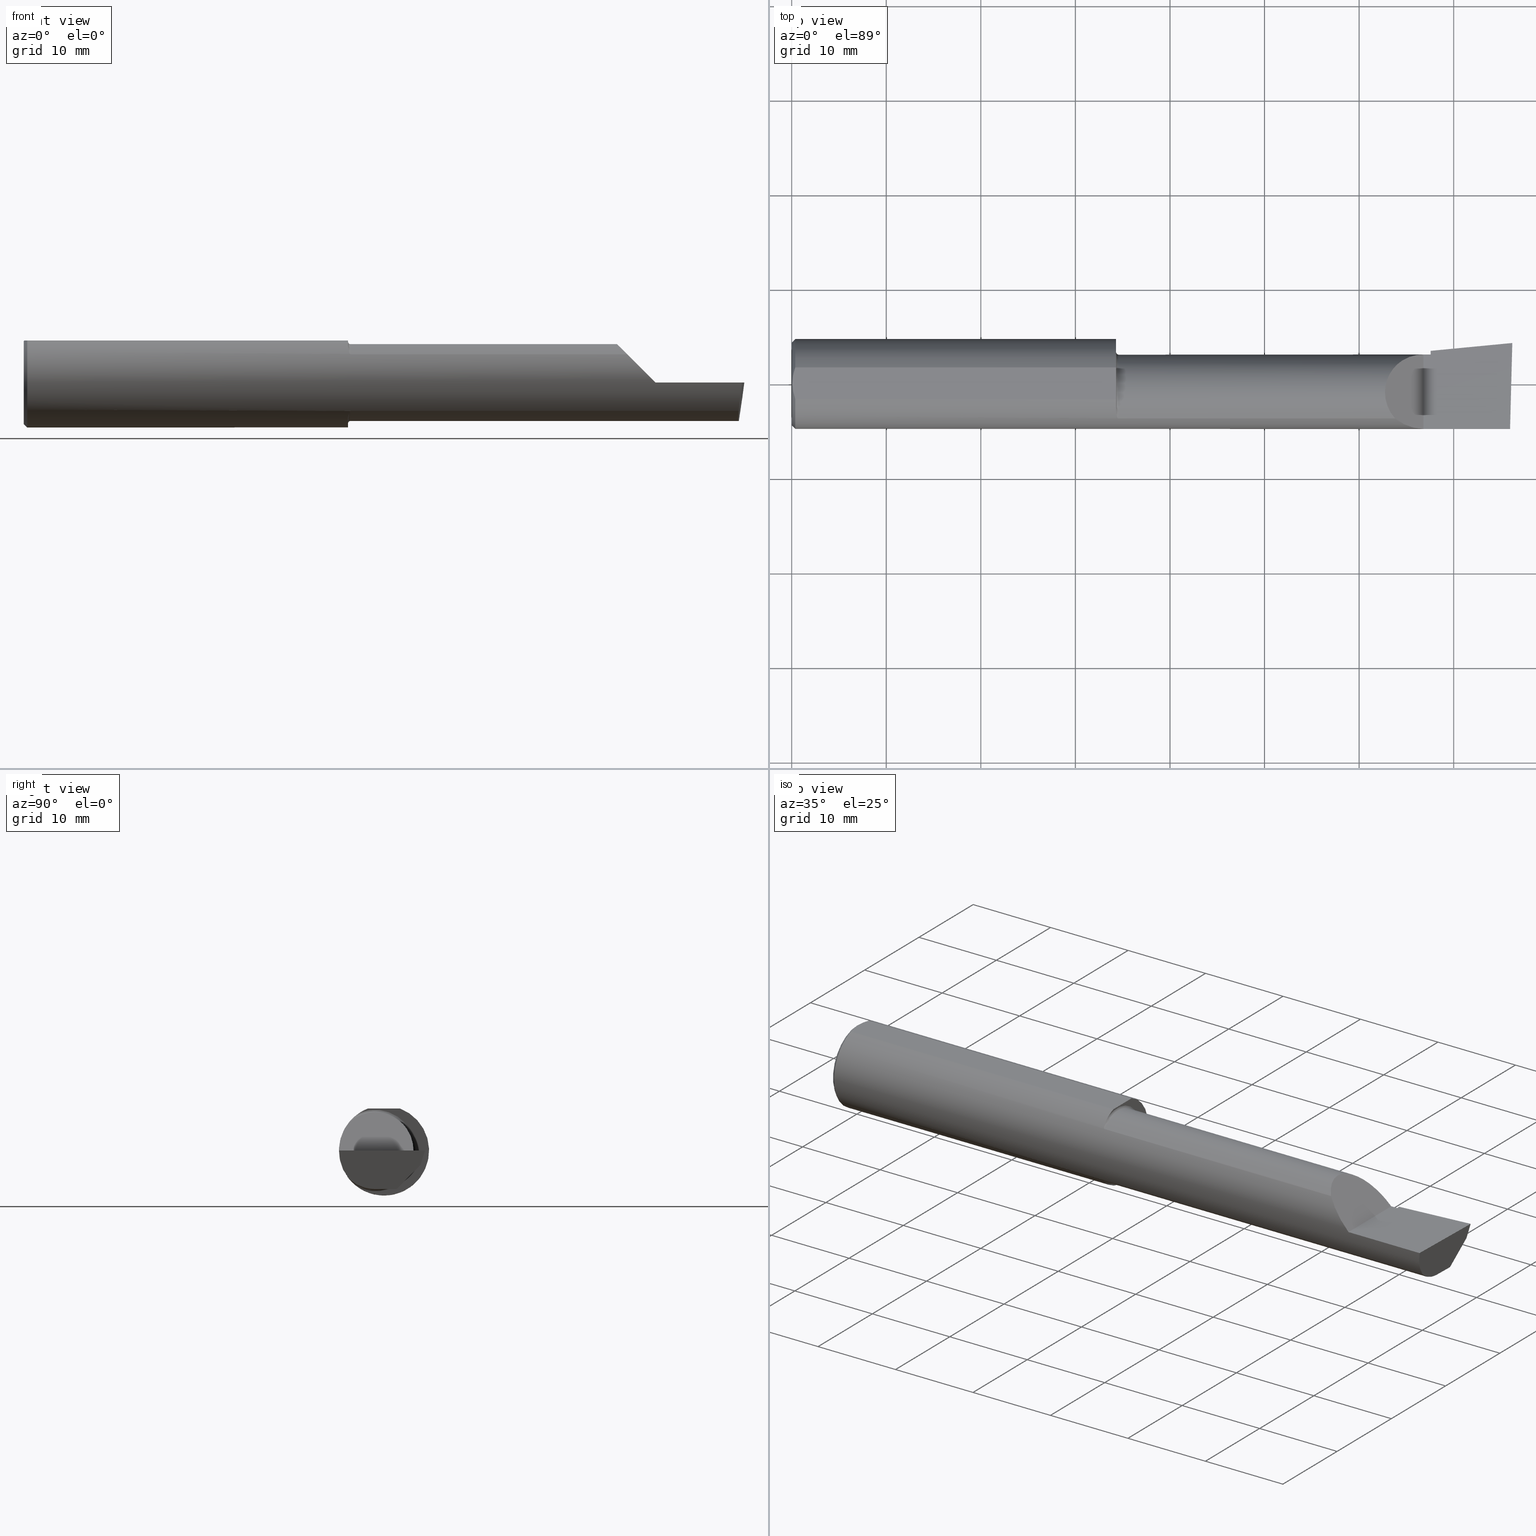
[diagram: canonical four-view strip — front | top / right | iso, engineering-drawing reading convention]
A machine part, canonical four-view strip (front | top / right | iso — engineering-drawing reading convention). The complete STEP part file that produces these views, byte-faithful:
ISO-10303-21;
HEADER;
FILE_DESCRIPTION (( 'STEP AP214' ),
    '1' );
FILE_NAME ('B3601600.STEP',
    '2020-05-06T18:22:36',
    ( '' ),
    ( '' ),
    'SwSTEP 2.0',
    'SolidWorks 2018',
    '' );
FILE_SCHEMA (( 'AUTOMOTIVE_DESIGN' ));
ENDSEC;

DATA;
#1 = EDGE_CURVE ( 'NONE', #537, #368, #181, .T. ) ;
#2 = AXIS2_PLACEMENT_3D ( 'NONE', #566, #483, #526 ) ;
#3 = ADVANCED_FACE ( 'NONE', ( #382 ), #74, .F. ) ;
#4 = FACE_OUTER_BOUND ( 'NONE', #253, .T. ) ;
#5 = ORIENTED_EDGE ( 'NONE', *, *, #344, .F. ) ;
#6 = DIRECTION ( 'NONE',  ( 1.000000000000000000, 0.0000000000000000000, 0.0000000000000000000 ) ) ;
#7 = DIRECTION ( 'NONE',  ( -0.06894566448119619773, 0.7160281025913033393, -0.6946583704589935904 ) ) ;
#8 = CARTESIAN_POINT ( 'NONE',  ( 3.000000000000000444, -0.2500000000000000555, -6.829619984160658046E-17 ) ) ;
#9 = ORIENTED_EDGE ( 'NONE', *, *, #530, .T. ) ;
#10 = FACE_OUTER_BOUND ( 'NONE', #126, .T. ) ;
#11 = FACE_OUTER_BOUND ( 'NONE', #346, .T. ) ;
#12 =( NAMED_UNIT ( * ) SI_UNIT ( $, .STERADIAN. ) SOLID_ANGLE_UNIT ( ) );
#13 = CARTESIAN_POINT ( 'NONE',  ( 2.660000000000000142, 0.1226500000000000368, 3.563723795045364098E-16 ) ) ;
#14 = CARTESIAN_POINT ( 'NONE',  ( 2.980648201915109485, -0.1728409665178086974, -0.08432347972837200833 ) ) ;
#15 = AXIS2_PLACEMENT_3D ( 'NONE', #535, #457, #320 ) ;
#16 = CARTESIAN_POINT ( 'NONE',  ( 3.011712141217648409, 0.1533490680423131303, -0.06000000000000001166 ) ) ;
#17 = CARTESIAN_POINT ( 'NONE',  ( 2.629999999999999893, 0.1226499999999998147, -1.592040838891560883E-17 ) ) ;
#18 = PLANE ( 'NONE',  #258 ) ;
#19 = DIRECTION ( 'NONE',  ( -1.000000000000000000, -0.0000000000000000000, -0.0000000000000000000 ) ) ;
#20 = ORIENTED_EDGE ( 'NONE', *, *, #420, .T. ) ;
#21 = ORIENTED_EDGE ( 'NONE', *, *, #215, .F. ) ;
#22 = ORIENTED_EDGE ( 'NONE', *, *, #24, .F. ) ;
#23 = CARTESIAN_POINT ( 'NONE',  ( 2.659999999999999698, 0.02241901528670484783, -0.1600499999999999701 ) ) ;
#24 = EDGE_CURVE ( 'NONE', #288, #130, #122, .T. ) ;
#25 = PRODUCT_RELATED_PRODUCT_CATEGORY ( 'part', '', ( #324 ) ) ;
#26 = CARTESIAN_POINT ( 'NONE',  ( 0.01499999999999997863, -0.06597272163553657975, 0.1753499999999999781 ) ) ;
#27 = VERTEX_POINT ( 'NONE', #175 ) ;
#28 = CARTESIAN_POINT ( 'NONE',  ( 2.659999999999999698, 0.1379117236128366286, 0.0000000000000000000 ) ) ;
#29 = LINE ( 'NONE', #219, #221 ) ;
#30 = CARTESIAN_POINT ( 'NONE',  ( 2.977259974483422056, 0.05296767626088463160, -0.1600499999999999701 ) ) ;
#31 = CARTESIAN_POINT ( 'NONE',  ( 2.010000000000000231, -0.1454917112299465021, 0.1180346748349054287 ) ) ;
#32 = ORIENTED_EDGE ( 'NONE', *, *, #119, .T. ) ;
#33 = LINE ( 'NONE', #327, #276 ) ;
#34 = EDGE_CURVE ( 'NONE', #195, #368, #29, .T. ) ;
#35 = CARTESIAN_POINT ( 'NONE',  ( 3.000000000000000444, 0.2373500000000000332, 0.1753499999999999504 ) ) ;
#36 = AXIS2_PLACEMENT_3D ( 'NONE', #8, #592, #353 ) ;
#37 = CARTESIAN_POINT ( 'NONE',  ( 0.0000000000000000000, 0.06597272163553677404, 0.1753499999999999226 ) ) ;
#38 = CARTESIAN_POINT ( 'NONE',  ( 1.350000000000000311, 0.2373500000000000332, 0.1753499999999999504 ) ) ;
#39 = DIRECTION ( 'NONE',  ( 0.0000000000000000000, 1.000000000000000000, 0.0000000000000000000 ) ) ;
#40 = PLANE ( 'NONE',  #564 ) ;
#41 = DIRECTION ( 'NONE',  ( -1.671023757235063182E-18, -0.2936076258024058472, -0.9559260233253795702 ) ) ;
#42 = DIRECTION ( 'NONE',  ( -5.691349986800549142E-18, -1.000000000000000000, 1.438723400918613551E-16 ) ) ;
#43 = CARTESIAN_POINT ( 'NONE',  ( 2.659999999999999698, 0.1010446066476774901, -0.07900565447499383054 ) ) ;
#44 =( CONVERSION_BASED_UNIT ( 'INCH', #300 ) LENGTH_UNIT ( ) NAMED_UNIT ( #373 ) );
#45 = VERTEX_POINT ( 'NONE', #249 ) ;
#46 = CARTESIAN_POINT ( 'NONE',  ( 1.350000000000000311, -0.1013606951871662831, -0.1575627873933891920 ) ) ;
#47 = ORIENTED_EDGE ( 'NONE', *, *, #164, .T. ) ;
#48 = ORIENTED_EDGE ( 'NONE', *, *, #530, .F. ) ;
#49 = DIRECTION ( 'NONE',  ( 1.000000000000000000, -5.691349986800549142E-18, 0.0000000000000000000 ) ) ;
#50 = CARTESIAN_POINT ( 'NONE',  ( 1.350000000000000311, -0.1099295023601654653, -0.1520504436074704979 ) ) ;
#51 = CARTESIAN_POINT ( 'NONE',  ( 1.357921033727478521, -0.1445976381173492142, 0.1191292621734219709 ) ) ;
#52 = DIRECTION ( 'NONE',  ( -0.7071067811865516806, 0.0000000000000000000, 0.7071067811865434649 ) ) ;
#53 = FACE_OUTER_BOUND ( 'NONE', #596, .T. ) ;
#54 = AXIS2_PLACEMENT_3D ( 'NONE', #437, #455, #248 ) ;
#55 = CARTESIAN_POINT ( 'NONE',  ( 1.350483388365424364, -0.1180160148311104606, -0.1458664675357414509 ) ) ;
#56 = ORIENTED_EDGE ( 'NONE', *, *, #246, .F. ) ;
#57 = EDGE_LOOP ( 'NONE', ( #469, #392, #204, #500 ) ) ;
#58 = CARTESIAN_POINT ( 'NONE',  ( 1.352152469637251109, -0.1294082664154920792, -0.1355718222394687866 ) ) ;
#59 = ORIENTED_EDGE ( 'NONE', *, *, #108, .F. ) ;
#60 = ADVANCED_FACE ( 'NONE', ( #286 ), #210, .T. ) ;
#61 = CARTESIAN_POINT ( 'NONE',  ( 1.357909242887170853, -0.1445870704379413896, -0.1191421054870963059 ) ) ;
#62 = VERTEX_POINT ( 'NONE', #218 ) ;
#63 = B_SPLINE_CURVE_WITH_KNOTS ( 'NONE', 3,
 ( #377, #544, #590, #491, #398, #84, #245, #269, #365, #155, #51, #425, #429, #511 ),
 .UNSPECIFIED., .F., .F.,
 ( 4, 2, 2, 2, 2, 2, 4 ),
 ( 0.0006605532644857158020, 0.001446564801351194179, 0.001839570569783934018, 0.002036073454000306322, 0.002134324896108489873, 0.002183450617162586635, 0.002232576338216682964 ),
 .UNSPECIFIED. ) ;
#64 = ORIENTED_EDGE ( 'NONE', *, *, #302, .T. ) ;
#65 = VERTEX_POINT ( 'NONE', #183 ) ;
#66 = CARTESIAN_POINT ( 'NONE',  ( 2.629999999999999893, -0.1873499999999999888, -1.592040838891560883E-17 ) ) ;
#67 = CARTESIAN_POINT ( 'NONE',  ( 1.358770022656896170, -0.1452078353828887280, -0.1183847404910805950 ) ) ;
#68 = CARTESIAN_POINT ( 'NONE',  ( 2.586590019116435712, -0.1873500000000000165, 0.04340998088356372991 ) ) ;
#69 = VECTOR ( 'NONE', #390, 39.37007874015748854 ) ;
#70 = DIRECTION ( 'NONE',  ( -0.9953961983671800740, -0.09584575252021031166, 0.0000000000000000000 ) ) ;
#71 = DIRECTION ( 'NONE',  ( 0.1219104985252890266, 0.0000000000000000000, 0.9925410975618670362 ) ) ;
#72 = DIMENSIONAL_EXPONENTS ( 1.000000000000000000, 0.0000000000000000000, 0.0000000000000000000, 0.0000000000000000000, 0.0000000000000000000, 0.0000000000000000000, 0.0000000000000000000 ) ;
#73 = ORIENTED_EDGE ( 'NONE', *, *, #456, .T. ) ;
#74 = PLANE ( 'NONE',  #450 ) ;
#75 = CARTESIAN_POINT ( 'NONE',  ( 2.974893613600465336, -0.03740000000000000269, -0.1600499999999999701 ) ) ;
#76 = ORIENTED_EDGE ( 'NONE', *, *, #597, .F. ) ;
#77 = CARTESIAN_POINT ( 'NONE',  ( 1.350000000000000311, 0.0000000000000000000, 0.0000000000000000000 ) ) ;
#78 = EDGE_CURVE ( 'NONE', #266, #195, #428, .T. ) ;
#79 = SURFACE_SIDE_STYLE ('',( #358 ) ) ;
#80 = CARTESIAN_POINT ( 'NONE',  ( 3.011712141217648409, 0.1533490680423131303, -0.06000000000000001166 ) ) ;
#81 = DIRECTION ( 'NONE',  ( 0.0000000000000000000, -1.000000000000000000, 0.0000000000000000000 ) ) ;
#82 = ORIENTED_EDGE ( 'NONE', *, *, #294, .T. ) ;
#83 = ORIENTED_EDGE ( 'NONE', *, *, #506, .T. ) ;
#84 = CARTESIAN_POINT ( 'NONE',  ( 1.354402240695039117, -0.1382337250035442500, 0.1264828452200237596 ) ) ;
#85 = DIRECTION ( 'NONE',  ( -1.000000000000000000, 5.691349986800549142E-18, -0.0000000000000000000 ) ) ;
#86 = DIRECTION ( 'NONE',  ( -0.7071067811865434649, 0.0000000000000000000, -0.7071067811865516806 ) ) ;
#87 = EDGE_CURVE ( 'NONE', #102, #489, #570, .T. ) ;
#88 = DIRECTION ( 'NONE',  ( 0.1053106618241837072, 0.6976485211320172519, 0.7086580314005208603 ) ) ;
#89 = CARTESIAN_POINT ( 'NONE',  ( 2.660000000000000142, -0.03740000000000000269, 0.0000000000000000000 ) ) ;
#90 = COLOUR_RGB ( '',0.7529411764705882248, 0.7529411764705882248, 0.7529411764705882248 ) ;
#91 = CARTESIAN_POINT ( 'NONE',  ( 1.359335809113331406, -0.1454917112299462245, -0.1180346748349057201 ) ) ;
#92 = ORIENTED_EDGE ( 'NONE', *, *, #141, .T. ) ;
#93 = ORIENTED_EDGE ( 'NONE', *, *, #539, .F. ) ;
#94 = PRESENTATION_STYLE_ASSIGNMENT (( #200 ) ) ;
#95 = VERTEX_POINT ( 'NONE', #159 ) ;
#96 = CARTESIAN_POINT ( 'NONE',  ( 3.009953961983673487, 0.1716084575252021516, -6.829619984160658046E-17 ) ) ;
#97 = B_SPLINE_CURVE_WITH_KNOTS ( 'NONE', 3,
 ( #543, #158, #283, #275, #296, #290 ),
 .UNSPECIFIED., .F., .F.,
 ( 4, 2, 4 ),
 ( 0.003480013901590607410, 0.004330767971208085432, 0.005181522040825563453 ),
 .UNSPECIFIED. ) ;
#98 = CARTESIAN_POINT ( 'NONE',  ( 1.360000000000000320, -0.1454917112299460580, -0.1180346748349056646 ) ) ;
#99 =( NAMED_UNIT ( * ) SI_UNIT ( $, .STERADIAN. ) SOLID_ANGLE_UNIT ( ) );
#100 = CARTESIAN_POINT ( 'NONE',  ( 0.01499999999999999424, 0.0000000000000000000, -0.1873499999999999888 ) ) ;
#101 = ORIENTED_EDGE ( 'NONE', *, *, #420, .F. ) ;
#102 = VERTEX_POINT ( 'NONE', #166 ) ;
#103 = DIRECTION ( 'NONE',  ( 0.0000000000000000000, 0.0000000000000000000, 1.000000000000000000 ) ) ;
#104 = CARTESIAN_POINT ( 'NONE',  ( 1.356664569472228132, -0.1431262185210684379, -0.1208975608635240034 ) ) ;
#105 = CYLINDRICAL_SURFACE ( 'NONE', #513, 0.1600499999999999701 ) ;
#106 = DIRECTION ( 'NONE',  ( 0.0000000000000000000, 0.0000000000000000000, -1.000000000000000000 ) ) ;
#107 =( NAMED_UNIT ( * ) SI_UNIT ( $, .STERADIAN. ) SOLID_ANGLE_UNIT ( ) );
#108 = EDGE_CURVE ( 'NONE', #442, #489, #510, .T. ) ;
#109 = DIRECTION ( 'NONE',  ( -5.691349986800549142E-18, -1.000000000000000000, 0.0000000000000000000 ) ) ;
#110 = VECTOR ( 'NONE', #462, 39.37007874015748143 ) ;
#111 = DIRECTION ( 'NONE',  ( -1.000000000000000000, 5.691349986800549142E-18, 0.0000000000000000000 ) ) ;
#112 = ORIENTED_EDGE ( 'NONE', *, *, #289, .F. ) ;
#113 = ORIENTED_EDGE ( 'NONE', *, *, #404, .T. ) ;
#114 = ORIENTED_EDGE ( 'NONE', *, *, #468, .F. ) ;
#115 = LINE ( 'NONE', #43, #318 ) ;
#116 = EDGE_CURVE ( 'NONE', #316, #521, #488, .T. ) ;
#117 = PLANE ( 'NONE',  #307 ) ;
#118 = ADVANCED_FACE ( 'NONE', ( #527 ), #117, .T. ) ;
#119 = EDGE_CURVE ( 'NONE', #195, #537, #172, .T. ) ;
#120 = ORIENTED_EDGE ( 'NONE', *, *, #34, .T. ) ;
#121 = CARTESIAN_POINT ( 'NONE',  ( 2.659999999999999698, 0.1379117236128366286, 0.0000000000000000000 ) ) ;
#122 = LINE ( 'NONE', #263, #482 ) ;
#123 = CARTESIAN_POINT ( 'NONE',  ( 0.003000000000000218638, 2.334609607045083916E-17, 0.1753499999999999781 ) ) ;
#124 = CARTESIAN_POINT ( 'NONE',  ( 2.511965325165094853, -0.1454917112299475568, 0.1180346748349042352 ) ) ;
#125 = CIRCLE ( 'NONE', #2, 0.1873499999999999888 ) ;
#126 = EDGE_LOOP ( 'NONE', ( #325, #265, #532, #339, #179 ) ) ;
#127 = DIRECTION ( 'NONE',  ( 0.0000000000000000000, 0.0000000000000000000, -1.000000000000000000 ) ) ;
#128 = ORIENTED_EDGE ( 'NONE', *, *, #556, .T. ) ;
#129 = EDGE_LOOP ( 'NONE', ( #274, #83, #347, #207, #235, #445, #402, #128, #216, #48, #82, #301, #493 ) ) ;
#130 = VERTEX_POINT ( 'NONE', #100 ) ;
#131 = CIRCLE ( 'NONE', #222, 0.1723499999999996424 ) ;
#132 = AXIS2_PLACEMENT_3D ( 'NONE', #547, #528, #231 ) ;
#133 = DIRECTION ( 'NONE',  ( 1.000000000000000000, 0.0000000000000000000, 0.0000000000000000000 ) ) ;
#134 = CIRCLE ( 'NONE', #192, 0.1873499999999999888 ) ;
#135 = CARTESIAN_POINT ( 'NONE',  ( 2.659999999999999698, -0.03740000000000000269, -0.1600499999999999701 ) ) ;
#136 = ORIENTED_EDGE ( 'NONE', *, *, #559, .F. ) ;
#137 = CARTESIAN_POINT ( 'NONE',  ( 0.003000000000000171800, -0.01126410975715119375, 0.1753500000000000059 ) ) ;
#138 = EDGE_LOOP ( 'NONE', ( #329, #162, #92, #384 ) ) ;
#139 = ORIENTED_EDGE ( 'NONE', *, *, #232, .T. ) ;
#140 = CARTESIAN_POINT ( 'NONE',  ( 0.004093196532652217806, -0.02240707710020815174, 0.1753499999999999504 ) ) ;
#141 = EDGE_CURVE ( 'NONE', #287, #95, #581, .T. ) ;
#142 = CARTESIAN_POINT ( 'NONE',  ( 0.01499999999999997863, -0.06597272163553657975, 0.1753499999999999781 ) ) ;
#143 = LINE ( 'NONE', #454, #534 ) ;
#144 = VECTOR ( 'NONE', #39, 39.37007874015748143 ) ;
#145 = ORIENTED_EDGE ( 'NONE', *, *, #294, .F. ) ;
#146 = CARTESIAN_POINT ( 'NONE',  ( 0.01128414053810044074, -0.05542038647445821781, 0.1753499999999999781 ) ) ;
#147 =( LENGTH_UNIT ( ) NAMED_UNIT ( * ) SI_UNIT ( $, .METRE. ) );
#148 = APPLICATION_PROTOCOL_DEFINITION ( 'draft international standard', 'automotive_design', 1998, #379 ) ;
#149 = DIRECTION ( 'NONE',  ( 0.02617694830787012372, 0.9996573249755572599, -3.650474420803376459E-18 ) ) ;
#150 = DIRECTION ( 'NONE',  ( -0.0000000000000000000, 1.000000000000000000, -0.0000000000000000000 ) ) ;
#152 = EDGE_CURVE ( 'NONE', #304, #427, #330, .T. ) ;
#151 = LINE ( 'NONE', #401, #448 ) ;
#153 = CLOSED_SHELL ( 'NONE', ( #362, #185, #118, #369, #440, #3, #523, #410, #473, #407, #331, #60, #224, #285, #170, #561, #516 ) ) ;
#154 = ORIENTED_EDGE ( 'NONE', *, *, #1, .F. ) ;
#155 = CARTESIAN_POINT ( 'NONE',  ( 1.357580800664965670, -0.1442412736056265521, 0.1195608849622527420 ) ) ;
#156 = CARTESIAN_POINT ( 'NONE',  ( 0.008227791779583793277, -0.04447712204611815184, 0.1753499999999999781 ) ) ;
#157 = CARTESIAN_POINT ( 'NONE',  ( 2.988992440003205520, -0.2497117568972558599, -6.673801155297120255E-17 ) ) ;
#158 = CARTESIAN_POINT ( 'NONE',  ( 0.003000000000000172234, 0.01127363201155565098, 0.1753499999999999781 ) ) ;
#159 = CARTESIAN_POINT ( 'NONE',  ( 1.350000000000000311, -0.1013606951871662831, -0.1575627873933891920 ) ) ;
#160 = DIRECTION ( 'NONE',  ( -3.962974135542378872E-18, -0.6963153109074927682, -0.7177360153954946975 ) ) ;
#161 =( BOUNDED_CURVE ( )  B_SPLINE_CURVE ( 3, ( #66, #68, #311, #124 ),
 .UNSPECIFIED., .F., .F. ) 
 B_SPLINE_CURVE_WITH_KNOTS ( ( 4, 4 ),
 ( 4.712388980384689674, 5.393970886271879372 ),
 .UNSPECIFIED. ) 
 CURVE ( )  GEOMETRIC_REPRESENTATION_ITEM ( )  RATIONAL_B_SPLINE_CURVE ( ( 1.000000000000000000, 0.9616603987079558324, 0.9616603987079558324, 1.000000000000000000 ) ) 
 REPRESENTATION_ITEM ( '' )  );
#162 = ORIENTED_EDGE ( 'NONE', *, *, #345, .T. ) ;
#163 = FACE_OUTER_BOUND ( 'NONE', #138, .T. ) ;
#164 = EDGE_CURVE ( 'NONE', #45, #394, #536, .T. ) ;
#165 = DIRECTION ( 'NONE',  ( 0.7071067811865390240, 8.659560562355036396E-17, 0.7071067811865560104 ) ) ;
#166 = CARTESIAN_POINT ( 'NONE',  ( 2.659999999999999698, 0.1379117236128415414, 3.606893054134847731E-16 ) ) ;
#167 = EDGE_CURVE ( 'NONE', #337, #474, #413, .T. ) ;
#168 = AXIS2_PLACEMENT_3D ( 'NONE', #259, #86, #52 ) ;
#169 = DIRECTION ( 'NONE',  ( -3.962974135542378872E-18, -0.6963153109074927682, -0.7177360153954946975 ) ) ;
#170 = ADVANCED_FACE ( 'NONE', ( #244 ), #18, .T. ) ;
#171 = ORIENTED_EDGE ( 'NONE', *, *, #87, .F. ) ;
#172 = CIRCLE ( 'NONE', #414, 0.1600500000000000533 ) ;
#173 = ORIENTED_EDGE ( 'NONE', *, *, #475, .T. ) ;
#174 = CONICAL_SURFACE ( 'NONE', #552, 0.1873499999999999888, 0.7853981633974602694 ) ;
#175 = CARTESIAN_POINT ( 'NONE',  ( 1.350000000000000311, -0.1013606951871662831, 0.1575627873933891920 ) ) ;
#176 = CARTESIAN_POINT ( 'NONE',  ( 1.352858161161657025, -0.1330631366558194806, -0.1319833113027350791 ) ) ;
#177 = CARTESIAN_POINT ( 'NONE',  ( 2.659999999999999698, 0.1010446066476774901, -0.07900565447499383054 ) ) ;
#178 = DIRECTION ( 'NONE',  ( 0.0000000000000000000, 1.000000000000000000, 0.0000000000000000000 ) ) ;
#179 = ORIENTED_EDGE ( 'NONE', *, *, #116, .T. ) ;
#180 = VERTEX_POINT ( 'NONE', #13 ) ;
#181 = LINE ( 'NONE', #135, #144 ) ;
#182 = CARTESIAN_POINT ( 'NONE',  ( 2.991169618080469661, 0.05430702260361114364, -0.1600499999999999701 ) ) ;
#183 = CARTESIAN_POINT ( 'NONE',  ( 0.0000000000000000000, 2.202527268266512578E-17, 0.1723499999999996424 ) ) ;
#184 = CARTESIAN_POINT ( 'NONE',  ( 2.467758842172327327, 0.1226500000000000090, 0.1622411578276713173 ) ) ;
#185 = ADVANCED_FACE ( 'NONE', ( #529 ), #40, .T. ) ;
#186 = AXIS2_PLACEMENT_3D ( 'NONE', #356, #460, #542 ) ;
#187 = ORIENTED_EDGE ( 'NONE', *, *, #78, .F. ) ;
#188 = VECTOR ( 'NONE', #306, 39.37007874015748143 ) ;
#189 = VECTOR ( 'NONE', #280, 39.37007874015748143 ) ;
#190 = DIRECTION ( 'NONE',  ( 0.9953961983671787417, 0.09584575252022435599, -1.409044964823803883E-16 ) ) ;
#191 = EDGE_CURVE ( 'NONE', #180, #266, #205, .T. ) ;
#192 = AXIS2_PLACEMENT_3D ( 'NONE', #77, #583, #178 ) ;
#193 = CARTESIAN_POINT ( 'NONE',  ( 1.350000000000000311, -0.06597272163553659363, 0.1753499999999999781 ) ) ;
#194 = DIRECTION ( 'NONE',  ( -0.09165774897393341725, 0.9519021185660614393, -0.2923717047227301080 ) ) ;
#195 = VERTEX_POINT ( 'NONE', #461 ) ;
#196 = DIRECTION ( 'NONE',  ( 5.691349986800549142E-18, 1.000000000000000000, 0.0000000000000000000 ) ) ;
#197 = EDGE_LOOP ( 'NONE', ( #391, #408 ) ) ;
#198 = ORIENTED_EDGE ( 'NONE', *, *, #366, .F. ) ;
#199 = EDGE_CURVE ( 'NONE', #521, #62, #97, .T. ) ;
#200 = SURFACE_STYLE_USAGE ( .BOTH. , #79 ) ;
#201 = DIRECTION ( 'NONE',  ( 1.000000000000000000, -5.691349986800549142E-18, 0.0000000000000000000 ) ) ;
#202 = UNCERTAINTY_MEASURE_WITH_UNIT (LENGTH_MEASURE( 1.000000000000000082E-05 ), #340, 'distance_accuracy_value', 'NONE');
#203 = CARTESIAN_POINT ( 'NONE',  ( 2.010000000000000231, -0.1454917112299465021, -0.1180346748349054287 ) ) ;
#204 = ORIENTED_EDGE ( 'NONE', *, *, #344, .T. ) ;
#205 = CIRCLE ( 'NONE', #297, 0.1600500000000000533 ) ;
#206 = CARTESIAN_POINT ( 'NONE',  ( 0.8393181374772645809, -0.03739999999999999575, 2.375616991505627107E-16 ) ) ;
#207 = ORIENTED_EDGE ( 'NONE', *, *, #597, .T. ) ;
#208 = CARTESIAN_POINT ( 'NONE',  ( 0.0000000000000000000, 0.0000000000000000000, 0.0000000000000000000 ) ) ;
#209 = CARTESIAN_POINT ( 'NONE',  ( 0.01499999999999999424, 2.294375778202566330E-17, 0.1873499999999999888 ) ) ;
#210 = PLANE ( 'NONE',  #385 ) ;
#211 = CARTESIAN_POINT ( 'NONE',  ( 1.350000000000000311, 0.1326499999999998791, 0.0000000000000000000 ) ) ;
#212 = PRESENTATION_STYLE_ASSIGNMENT (( #567 ) ) ;
#213 = CARTESIAN_POINT ( 'NONE',  ( 2.973833329693935212, -0.07789060880782654184, -0.1600499999999999423 ) ) ;
#214 = DIRECTION ( 'NONE',  ( -3.962974135542378872E-18, -0.6963153109074927682, -0.7177360153954946975 ) ) ;
#215 = EDGE_CURVE ( 'NONE', #65, #288, #131, .T. ) ;
#216 = ORIENTED_EDGE ( 'NONE', *, *, #326, .F. ) ;
#217 = CARTESIAN_POINT ( 'NONE',  ( 2.659999999999999698, -0.03740000000000000269, -0.1600499999999999701 ) ) ;
#218 = CARTESIAN_POINT ( 'NONE',  ( 0.01499999999999999424, 0.06597272163553677404, 0.1753499999999999226 ) ) ;
#219 = CARTESIAN_POINT ( 'NONE',  ( 2.659999999999999698, 0.1010446066476774901, -0.07900565447499383054 ) ) ;
#220 = DIRECTION ( 'NONE',  ( -0.02617694830787013066, -0.9996573249755572599, 0.0000000000000000000 ) ) ;
#221 = VECTOR ( 'NONE', #214, 39.37007874015748143 ) ;
#222 = AXIS2_PLACEMENT_3D ( 'NONE', #433, #548, #405 ) ;
#223 = ORIENTED_EDGE ( 'NONE', *, *, #246, .T. ) ;
#224 = ADVANCED_FACE ( 'NONE', ( #372 ), #105, .T. ) ;
#225 = EDGE_CURVE ( 'NONE', #288, #65, #370, .T. ) ;
#226 = AXIS2_PLACEMENT_3D ( 'NONE', #560, #399, #522 ) ;
#227 = CARTESIAN_POINT ( 'NONE',  ( 1.357567572594822414, -0.1442269357022583354, -0.1195781817710035860 ) ) ;
#228 = EDGE_LOOP ( 'NONE', ( #56, #575, #136, #386 ) ) ;
#229 = ORIENTED_EDGE ( 'NONE', *, *, #556, .F. ) ;
#230 = VECTOR ( 'NONE', #88, 39.37007874015748854 ) ;
#231 = DIRECTION ( 'NONE',  ( 0.0000000000000000000, -1.000000000000000000, 0.0000000000000000000 ) ) ;
#232 = EDGE_CURVE ( 'NONE', #95, #45, #595, .T. ) ;
#233 = LENGTH_MEASURE_WITH_UNIT ( LENGTH_MEASURE( 0.02539999999999999897 ), #147 );
#234 = FILL_AREA_STYLE_COLOUR ( '', #90 ) ;
#235 = ORIENTED_EDGE ( 'NONE', *, *, #167, .F. ) ;
#236 = VERTEX_POINT ( 'NONE', #273 ) ;
#237 = DIRECTION ( 'NONE',  ( -1.000000000000000000, 5.691349986800549142E-18, -0.0000000000000000000 ) ) ;
#238 = DIMENSIONAL_EXPONENTS ( 1.000000000000000000, 0.0000000000000000000, 0.0000000000000000000, 0.0000000000000000000, 0.0000000000000000000, 0.0000000000000000000, 0.0000000000000000000 ) ;
#239 = ORIENTED_EDGE ( 'NONE', *, *, #366, .T. ) ;
#240 = AXIS2_PLACEMENT_3D ( 'NONE', #571, #495, #466 ) ;
#241 = DIRECTION ( 'NONE',  ( 0.7071067811865390240, 0.0000000000000000000, -0.7071067811865560104 ) ) ;
#242 = ORIENTED_EDGE ( 'NONE', *, *, #524, .T. ) ;
#243 = ORIENTED_EDGE ( 'NONE', *, *, #404, .F. ) ;
#244 = FACE_OUTER_BOUND ( 'NONE', #360, .T. ) ;
#245 = CARTESIAN_POINT ( 'NONE',  ( 1.354997648858497827, -0.1399294360413330385, 0.1246027428089599431 ) ) ;
#246 = EDGE_CURVE ( 'NONE', #304, #489, #33, .T. ) ;
#247 = DIRECTION ( 'NONE',  ( 0.0000000000000000000, -1.438723400918613551E-16, -1.000000000000000000 ) ) ;
#248 = DIRECTION ( 'NONE',  ( 1.000000000000000000, 0.0000000000000000000, 0.0000000000000000000 ) ) ;
#249 = CARTESIAN_POINT ( 'NONE',  ( 1.350000000000000311, 0.06597272163553680180, 0.1753499999999999781 ) ) ;
#250 = LINE ( 'NONE', #359, #599 ) ;
#251 = DIRECTION ( 'NONE',  ( 0.0000000000000000000, 0.0000000000000000000, 1.000000000000000000 ) ) ;
#252 =( BOUNDED_CURVE ( )  B_SPLINE_CURVE ( 3, ( #485, #412, #213, #75 ),
 .UNSPECIFIED., .F., .T. ) 
 B_SPLINE_CURVE_WITH_KNOTS ( ( 4, 4 ),
 ( 5.751779107031518734, 6.493234751459717735 ),
 .UNSPECIFIED. ) 
 CURVE ( )  GEOMETRIC_REPRESENTATION_ITEM ( )  RATIONAL_B_SPLINE_CURVE ( ( 1.000000000000000000, 0.9547092712975354667, 0.9547092712975354667, 1.000000000000000000 ) ) 
 REPRESENTATION_ITEM ( '' )  );
#253 = EDGE_LOOP ( 'NONE', ( #343, #76, #20 ) ) ;
#254 = VERTEX_POINT ( 'NONE', #579 ) ;
#255 = ORIENTED_EDGE ( 'NONE', *, *, #539, .T. ) ;
#256 = CIRCLE ( 'NONE', #471, 0.1873499999999999888 ) ;
#257 = FILL_AREA_STYLE ('',( #270 ) ) ;
#258 = AXIS2_PLACEMENT_3D ( 'NONE', #16, #7, #348 ) ;
#259 = CARTESIAN_POINT ( 'NONE',  ( 2.629999999999999893, -0.2500000000000000555, -1.592040838891560883E-17 ) ) ;
#260 = CARTESIAN_POINT ( 'NONE',  ( 0.01499999999999999424, 0.0000000000000000000, 0.0000000000000000000 ) ) ;
#261 = EDGE_CURVE ( 'NONE', #27, #337, #63, .T. ) ;
#262 = CARTESIAN_POINT ( 'NONE',  ( 0.0000000000000000000, -0.06597272163553671853, 0.1753499999999999226 ) ) ;
#263 = CARTESIAN_POINT ( 'NONE',  ( 0.01499999999999999424, 0.0000000000000000000, -0.1873499999999999888 ) ) ;
#264 =( GEOMETRIC_REPRESENTATION_CONTEXT ( 3 ) GLOBAL_UNCERTAINTY_ASSIGNED_CONTEXT ( ( #202 ) ) GLOBAL_UNIT_ASSIGNED_CONTEXT ( ( #340, #336, #99 ) ) REPRESENTATION_CONTEXT ( 'NONE', 'WORKASPACE' ) );
#265 = ORIENTED_EDGE ( 'NONE', *, *, #225, .F. ) ;
#266 = VERTEX_POINT ( 'NONE', #431 ) ;
#267 = ORIENTED_EDGE ( 'NONE', *, *, #116, .F. ) ;
#268 = CARTESIAN_POINT ( 'NONE',  ( 2.402393788885674120, -0.02584108761840401072, 0.2276062111143233868 ) ) ;
#269 = CARTESIAN_POINT ( 'NONE',  ( 1.356216587669451412, -0.1423502170013163648, 0.1218111458006551073 ) ) ;
#270 = FILL_AREA_STYLE_COLOUR ( '', #317 ) ;
#271 = SURFACE_SIDE_STYLE ('',( #580 ) ) ;
#272 = CARTESIAN_POINT ( 'NONE',  ( 3.000000000000000444, -0.03740000000000000269, -0.1600499999999999701 ) ) ;
#273 = CARTESIAN_POINT ( 'NONE',  ( 2.974893613600465336, -0.03740000000000000269, -0.1600499999999999701 ) ) ;
#274 = ORIENTED_EDGE ( 'NONE', *, *, #524, .F. ) ;
#275 = CARTESIAN_POINT ( 'NONE',  ( 0.008244775919947433529, 0.04453482769755864185, 0.1753499999999999504 ) ) ;
#276 = VECTOR ( 'NONE', #549, 39.37007874015748143 ) ;
#277 = EDGE_LOOP ( 'NONE', ( #255, #328, #113, #223, #59, #291 ) ) ;
#278 = DIRECTION ( 'NONE',  ( -1.000000000000000000, -0.0000000000000000000, -0.0000000000000000000 ) ) ;
#279 = PLANE ( 'NONE',  #36 ) ;
#280 = DIRECTION ( 'NONE',  ( 1.000000000000000000, -5.691349986800549142E-18, 0.0000000000000000000 ) ) ;
#281 = CARTESIAN_POINT ( 'NONE',  ( 2.659999999999999698, -0.03740000000000000269, 0.0000000000000000000 ) ) ;
#282 = AXIS2_PLACEMENT_3D ( 'NONE', #436, #133, #127 ) ;
#283 = CARTESIAN_POINT ( 'NONE',  ( 0.004115035183746283340, 0.02255629470626750385, 0.1753499999999999781 ) ) ;
#284 = FACE_OUTER_BOUND ( 'NONE', #481, .T. ) ;
#285 = ADVANCED_FACE ( 'NONE', ( #472 ), #501, .T. ) ;
#286 = FACE_OUTER_BOUND ( 'NONE', #409, .T. ) ;
#287 = VERTEX_POINT ( 'NONE', #309 ) ;
#288 = VERTEX_POINT ( 'NONE', #424 ) ;
#289 = EDGE_CURVE ( 'NONE', #195, #266, #519, .T. ) ;
#290 = CARTESIAN_POINT ( 'NONE',  ( 0.01499999999999999424, 0.06597272163553677404, 0.1753499999999999226 ) ) ;
#291 = ORIENTED_EDGE ( 'NONE', *, *, #506, .F. ) ;
#292 = PLANE ( 'NONE',  #282 ) ;
#294 = EDGE_CURVE ( 'NONE', #62, #45, #305, .T. ) ;
#293 = VECTOR ( 'NONE', #42, 39.37007874015748143 ) ;
#295 = DIRECTION ( 'NONE',  ( 1.000000000000000000, -5.691349986800549142E-18, 0.0000000000000000000 ) ) ;
#296 = CARTESIAN_POINT ( 'NONE',  ( 0.01125230581755091823, 0.05532998191409932431, 0.1753500000000000059 ) ) ;
#297 = AXIS2_PLACEMENT_3D ( 'NONE', #313, #430, #397 ) ;
#298 = VECTOR ( 'NONE', #169, 39.37007874015748143 ) ;
#299 = SHAPE_DEFINITION_REPRESENTATION ( #484, #381 ) ;
#300 = LENGTH_MEASURE_WITH_UNIT ( LENGTH_MEASURE( 0.02539999999999999897 ), #504 );
#301 = ORIENTED_EDGE ( 'NONE', *, *, #232, .F. ) ;
#302 = EDGE_CURVE ( 'NONE', #65, #521, #357, .T. ) ;
#303 = ORIENTED_EDGE ( 'NONE', *, *, #164, .F. ) ;
#304 = VERTEX_POINT ( 'NONE', #434 ) ;
#305 = LINE ( 'NONE', #37, #558 ) ;
#306 = DIRECTION ( 'NONE',  ( -1.000000000000000000, 5.691349986800548372E-18, -0.0000000000000000000 ) ) ;
#307 = AXIS2_PLACEMENT_3D ( 'NONE', #121, #111, #109 ) ;
#308 = DIRECTION ( 'NONE',  ( 0.0000000000000000000, -1.000000000000000000, 0.0000000000000000000 ) ) ;
#309 = CARTESIAN_POINT ( 'NONE',  ( 1.360000000000000320, -0.1454917112299460580, -0.1180346748349056646 ) ) ;
#310 = CIRCLE ( 'NONE', #132, 0.1700499999999998679 ) ;
#311 = CARTESIAN_POINT ( 'NONE',  ( 2.545676520271628718, -0.1728409665178091414, 0.08432347972837085648 ) ) ;
#312 = DIRECTION ( 'NONE',  ( 5.691349986800549142E-18, 1.000000000000000000, -8.056458378187594471E-34 ) ) ;
#313 = CARTESIAN_POINT ( 'NONE',  ( 2.660000000000000142, -0.03740000000000000269, 0.0000000000000000000 ) ) ;
#314 = EDGE_LOOP ( 'NONE', ( #93, #242, #576, #376, #173, #554, #517, #112, #32, #198 ) ) ;
#315 = VERTEX_POINT ( 'NONE', #508 ) ;
#316 = VERTEX_POINT ( 'NONE', #26 ) ;
#317 = COLOUR_RGB ( '',0.7529411764705882248, 0.7529411764705882248, 0.7529411764705882248 ) ;
#318 = VECTOR ( 'NONE', #160, 39.37007874015748143 ) ;
#319 = DIRECTION ( 'NONE',  ( -5.691349986800549142E-18, -1.000000000000000000, 0.0000000000000000000 ) ) ;
#320 = DIRECTION ( 'NONE',  ( 0.0000000000000000000, 0.0000000000000000000, -1.000000000000000000 ) ) ;
#321 = CARTESIAN_POINT ( 'NONE',  ( 2.990625440078233499, -0.1873499999999999888, -6.696573958807098242E-17 ) ) ;
#322 = UNCERTAINTY_MEASURE_WITH_UNIT (LENGTH_MEASURE( 1.000000000000000082E-05 ), #44, 'distance_accuracy_value', 'NONE');
#323 = EDGE_CURVE ( 'NONE', #180, #102, #151, .T. ) ;
#324 = PRODUCT ( 'B3601600', 'B3601600', '', ( #374 ) ) ;
#325 = ORIENTED_EDGE ( 'NONE', *, *, #302, .F. ) ;
#326 = EDGE_CURVE ( 'NONE', #130, #316, #256, .T. ) ;
#327 = CARTESIAN_POINT ( 'NONE',  ( 3.000188977433813520, 0.1711105994646681672, 0.001440373173037699187 ) ) ;
#328 = ORIENTED_EDGE ( 'NONE', *, *, #456, .F. ) ;
#329 = ORIENTED_EDGE ( 'NONE', *, *, #261, .T. ) ;
#330 = LINE ( 'NONE', #80, #363 ) ;
#331 = ADVANCED_FACE ( 'NONE', ( #163 ), #418, .F. ) ;
#332 = ORIENTED_EDGE ( 'NONE', *, *, #199, .T. ) ;
#333 = CARTESIAN_POINT ( 'NONE',  ( 3.000000000000013323, 0.1706500000000293060, 9.145501435664636045E-14 ) ) ;
#334 =( NAMED_UNIT ( * ) PLANE_ANGLE_UNIT ( ) SI_UNIT ( $, .RADIAN. ) );
#335 = CONICAL_SURFACE ( 'NONE', #15, 0.1873499999999999888, 0.7853981633974602694 ) ;
#336 =( NAMED_UNIT ( * ) PLANE_ANGLE_UNIT ( ) SI_UNIT ( $, .RADIAN. ) );
#337 = VERTEX_POINT ( 'NONE', #538 ) ;
#338 = ORIENTED_EDGE ( 'NONE', *, *, #518, .T. ) ;
#339 = ORIENTED_EDGE ( 'NONE', *, *, #326, .T. ) ;
#340 =( CONVERSION_BASED_UNIT ( 'INCH', #423 ) LENGTH_UNIT ( ) NAMED_UNIT ( #238 ) );
#341 = DIRECTION ( 'NONE',  ( -1.000000000000000000, -0.0000000000000000000, -0.0000000000000000000 ) ) ;
#342 = VERTEX_POINT ( 'NONE', #30 ) ;
#343 = ORIENTED_EDGE ( 'NONE', *, *, #475, .F. ) ;
#344 = EDGE_CURVE ( 'NONE', #427, #266, #115, .T. ) ;
#345 = EDGE_CURVE ( 'NONE', #337, #287, #494, .T. ) ;
#346 = EDGE_LOOP ( 'NONE', ( #21, #64, #332, #9, #22 ) ) ;
#347 = ORIENTED_EDGE ( 'NONE', *, *, #587, .T. ) ;
#348 = DIRECTION ( 'NONE',  ( 0.0000000000000000000, 0.6963153109074926572, 0.7177360153954946975 ) ) ;
#349 = FACE_OUTER_BOUND ( 'NONE', #562, .T. ) ;
#350 = DIRECTION ( 'NONE',  ( -5.691349986800549142E-18, -1.000000000000000000, 0.0000000000000000000 ) ) ;
#351 = CARTESIAN_POINT ( 'NONE',  ( 0.003000000000000218638, 2.334609607045083916E-17, 0.1753499999999999781 ) ) ;
#352 = DIRECTION ( 'NONE',  ( 1.000000000000000000, 0.0000000000000000000, 0.0000000000000000000 ) ) ;
#353 = DIRECTION ( 'NONE',  ( -1.000000000000000000, 0.0000000000000000000, 1.415561931153809475E-16 ) ) ;
#354 = FACE_OUTER_BOUND ( 'NONE', #277, .T. ) ;
#355 = AXIS2_PLACEMENT_3D ( 'NONE', #464, #278, #378 ) ;
#356 = CARTESIAN_POINT ( 'NONE',  ( 1.350000000000000311, 0.0000000000000000000, 0.0000000000000000000 ) ) ;
#357 = LINE ( 'NONE', #209, #480 ) ;
#358 = SURFACE_STYLE_FILL_AREA ( #257 ) ;
#359 = CARTESIAN_POINT ( 'NONE',  ( 2.974910817315464584, -0.03674301662998782914, -0.1600499999999999701 ) ) ;
#360 = EDGE_LOOP ( 'NONE', ( #243, #338, #421, #187, #5, #438 ) ) ;
#361 = STYLED_ITEM ( 'NONE', ( #212 ), #499 ) ;
#362 = ADVANCED_FACE ( 'NONE', ( #11 ), #174, .T. ) ;
#363 = VECTOR ( 'NONE', #70, 39.37007874015748854 ) ;
#364 = PRODUCT_DEFINITION_CONTEXT ( 'detailed design', #550, 'design' ) ;
#365 = CARTESIAN_POINT ( 'NONE',  ( 1.356674049009441552, -0.1431412424162801234, 0.1208797671938530438 ) ) ;
#366 = EDGE_CURVE ( 'NONE', #236, #537, #451, .T. ) ;
#367 = CARTESIAN_POINT ( 'NONE',  ( 2.977223734188808368, -0.1454917112299465021, -0.1180346748349054287 ) ) ;
#368 = VERTEX_POINT ( 'NONE', #23 ) ;
#369 = ADVANCED_FACE ( 'NONE', ( #349 ), #452, .F. ) ;
#370 = CIRCLE ( 'NONE', #355, 0.1723499999999996424 ) ;
#371 = ORIENTED_EDGE ( 'NONE', *, *, #1, .T. ) ;
#372 = FACE_OUTER_BOUND ( 'NONE', #314, .T. ) ;
#373 = DIMENSIONAL_EXPONENTS ( 1.000000000000000000, 0.0000000000000000000, 0.0000000000000000000, 0.0000000000000000000, 0.0000000000000000000, 0.0000000000000000000, 0.0000000000000000000 ) ;
#374 = PRODUCT_CONTEXT ( 'NONE', #379, 'mechanical' ) ;
#375 = STYLED_ITEM ( 'NONE', ( #94 ), #381 ) ;
#376 = ORIENTED_EDGE ( 'NONE', *, *, #167, .T. ) ;
#377 = CARTESIAN_POINT ( 'NONE',  ( 1.350000000000000311, -0.1013606951871662831, 0.1575627873933891920 ) ) ;
#378 = DIRECTION ( 'NONE',  ( 0.0000000000000000000, 0.0000000000000000000, 1.000000000000000000 ) ) ;
#379 = APPLICATION_CONTEXT ( 'automotive_design' ) ;
#380 = CARTESIAN_POINT ( 'NONE',  ( 2.629999999999999893, -0.2500000000000000555, -1.592040838891560883E-17 ) ) ;
#381 = ADVANCED_BREP_SHAPE_REPRESENTATION ( 'B3601600', ( #499, #531 ), #264 ) ;
#382 = FACE_OUTER_BOUND ( 'NONE', #565, .T. ) ;
#383 = VERTEX_POINT ( 'NONE', #533 ) ;
#384 = ORIENTED_EDGE ( 'NONE', *, *, #487, .F. ) ;
#385 = AXIS2_PLACEMENT_3D ( 'NONE', #211, #201, #196 ) ;
#386 = ORIENTED_EDGE ( 'NONE', *, *, #87, .T. ) ;
#387 = DIRECTION ( 'NONE',  ( -1.000000000000000000, 5.691349986800549142E-18, -0.0000000000000000000 ) ) ;
#388 = CARTESIAN_POINT ( 'NONE',  ( 2.972657716785286119, -0.1026153499216719278, -0.1643501480114537006 ) ) ;
#389 = PRESENTATION_LAYER_ASSIGNMENT (  '', '', ( #361 ) ) ;
#390 = DIRECTION ( 'NONE',  ( -0.9953961983671800740, -0.09584575252021028391, 0.0000000000000000000 ) ) ;
#391 = ORIENTED_EDGE ( 'NONE', *, *, #289, .T. ) ;
#392 = ORIENTED_EDGE ( 'NONE', *, *, #559, .T. ) ;
#393 = DIRECTION ( 'NONE',  ( 0.0000000000000000000, -1.000000000000000000, -1.776356839400250465E-15 ) ) ;
#394 = VERTEX_POINT ( 'NONE', #193 ) ;
#395 = DIRECTION ( 'NONE',  ( -1.000000000000000000, -0.0000000000000000000, -0.0000000000000000000 ) ) ;
#396 = CARTESIAN_POINT ( 'NONE',  ( 2.992483720199182518, 0.1538199878950239075, -0.05760614975163596413 ) ) ;
#397 = DIRECTION ( 'NONE',  ( 0.0000000000000000000, -1.000000000000000000, 0.0000000000000000000 ) ) ;
#398 = CARTESIAN_POINT ( 'NONE',  ( 1.352845212421890819, -0.1330145888620359040, 0.1320338710448779596 ) ) ;
#399 = DIRECTION ( 'NONE',  ( -1.000000000000000000, 5.691349986800549142E-18, 0.0000000000000000000 ) ) ;
#400 = LINE ( 'NONE', #503, #593 ) ;
#401 = CARTESIAN_POINT ( 'NONE',  ( 2.659999999999999698, -0.2500000000000000555, -2.016709418237695393E-17 ) ) ;
#402 = ORIENTED_EDGE ( 'NONE', *, *, #568, .F. ) ;
#403 = LINE ( 'NONE', #396, #230 ) ;
#404 = EDGE_CURVE ( 'NONE', #342, #304, #403, .T. ) ;
#405 = DIRECTION ( 'NONE',  ( 0.0000000000000000000, 0.0000000000000000000, 1.000000000000000000 ) ) ;
#406 = UNCERTAINTY_MEASURE_WITH_UNIT (LENGTH_MEASURE( 1.000000000000000082E-05 ), #479, 'distance_accuracy_value', 'NONE');
#407 = ADVANCED_FACE ( 'NONE', ( #10 ), #335, .T. ) ;
#408 = ORIENTED_EDGE ( 'NONE', *, *, #78, .T. ) ;
#409 = EDGE_LOOP ( 'NONE', ( #139, #47, #546, #553 ) ) ;
#410 = ADVANCED_FACE ( 'NONE', ( #4 ), #447, .F. ) ;
#411 = PRESENTATION_LAYER_ASSIGNMENT (  '', '', ( #375 ) ) ;
#412 = CARTESIAN_POINT ( 'NONE',  ( 2.974646882977779239, -0.1156304438478837071, -0.1453804992321581779 ) ) ;
#413 = LINE ( 'NONE', #31, #189 ) ;
#414 = AXIS2_PLACEMENT_3D ( 'NONE', #89, #85, #81 ) ;
#415 = DIRECTION ( 'NONE',  ( -0.9922060308645471727, 0.02598182930469029178, 0.1218693434051536101 ) ) ;
#416 = MECHANICAL_DESIGN_GEOMETRIC_PRESENTATION_REPRESENTATION (  '', ( #361 ), #439 ) ;
#417 = ORIENTED_EDGE ( 'NONE', *, *, #323, .F. ) ;
#418 = TOROIDAL_SURFACE ( 'NONE', #525, 0.1700499999999998679, 0.009999999999999807654 ) ;
#419 = CARTESIAN_POINT ( 'NONE',  ( 2.659999999999999698, 0.1194830407249522775, -0.06000000000000001860 ) ) ;
#420 = EDGE_CURVE ( 'NONE', #254, #383, #555, .T. ) ;
#421 = ORIENTED_EDGE ( 'NONE', *, *, #34, .F. ) ;
#422 = CARTESIAN_POINT ( 'NONE',  ( 1.360000000000000320, -0.03739999999999999575, 0.0000000000000000000 ) ) ;
#423 = LENGTH_MEASURE_WITH_UNIT ( LENGTH_MEASURE( 0.02539999999999999897 ), #588 );
#424 = CARTESIAN_POINT ( 'NONE',  ( 0.0000000000000000000, 0.0000000000000000000, -0.1723499999999996424 ) ) ;
#425 = CARTESIAN_POINT ( 'NONE',  ( 1.358780002058963987, -0.1452129146512408098, 0.1183784924451703191 ) ) ;
#426 = CARTESIAN_POINT ( 'NONE',  ( 0.01499999999999999424, 0.0000000000000000000, 0.0000000000000000000 ) ) ;
#427 = VERTEX_POINT ( 'NONE', #419 ) ;
#428 = LINE ( 'NONE', #177, #298 ) ;
#429 = CARTESIAN_POINT ( 'NONE',  ( 1.359343186359709632, -0.1454917112302220594, 0.1180346748345674213 ) ) ;
#430 = DIRECTION ( 'NONE',  ( -1.000000000000000000, 5.691349986800549142E-18, -0.0000000000000000000 ) ) ;
#431 = CARTESIAN_POINT ( 'NONE',  ( 2.659999999999999698, 0.1028057716897403662, -0.07719031082256620768 ) ) ;
#432 = MECHANICAL_DESIGN_GEOMETRIC_PRESENTATION_REPRESENTATION (  '', ( #375 ), #446 ) ;
#433 = CARTESIAN_POINT ( 'NONE',  ( 0.0000000000000000000, 0.0000000000000000000, 0.0000000000000000000 ) ) ;
#434 = CARTESIAN_POINT ( 'NONE',  ( 2.992127980275562482, 0.1514633278254524928, -0.06000000000000001166 ) ) ;
#435 = ORIENTED_EDGE ( 'NONE', *, *, #199, .F. ) ;
#436 = CARTESIAN_POINT ( 'NONE',  ( 0.0000000000000000000, 0.0000000000000000000, 0.0000000000000000000 ) ) ;
#437 = CARTESIAN_POINT ( 'NONE',  ( 3.000000000000000444, -0.03740000000000000269, -0.1600499999999999701 ) ) ;
#438 = ORIENTED_EDGE ( 'NONE', *, *, #152, .F. ) ;
#439 =( GEOMETRIC_REPRESENTATION_CONTEXT ( 3 ) GLOBAL_UNCERTAINTY_ASSIGNED_CONTEXT ( ( #406 ) ) GLOBAL_UNIT_ASSIGNED_CONTEXT ( ( #479, #334, #12 ) ) REPRESENTATION_CONTEXT ( 'NONE', 'WORKASPACE' ) );
#440 = ADVANCED_FACE ( 'NONE', ( #551 ), #574, .T. ) ;
#441 = CARTESIAN_POINT ( 'NONE',  ( 1.354404192622242542, -0.1382376748423444768, -0.1264781021717286957 ) ) ;
#442 = VERTEX_POINT ( 'NONE', #321 ) ;
#443 = CARTESIAN_POINT ( 'NONE',  ( 2.511965325165094853, -0.1454917112299475568, 0.1180346748349042352 ) ) ;
#444 = AXIS2_PLACEMENT_3D ( 'NONE', #96, #194, #449 ) ;
#445 = ORIENTED_EDGE ( 'NONE', *, *, #261, .F. ) ;
#446 =( GEOMETRIC_REPRESENTATION_CONTEXT ( 3 ) GLOBAL_UNCERTAINTY_ASSIGNED_CONTEXT ( ( #322 ) ) GLOBAL_UNIT_ASSIGNED_CONTEXT ( ( #44, #586, #107 ) ) REPRESENTATION_CONTEXT ( 'NONE', 'WORKASPACE' ) );
#447 = PLANE ( 'NONE',  #168 ) ;
#448 = VECTOR ( 'NONE', #312, 39.37007874015748143 ) ;
#449 = DIRECTION ( 'NONE',  ( 0.0000000000000000000, 0.2936076258024057917, 0.9559260233253795702 ) ) ;
#450 = AXIS2_PLACEMENT_3D ( 'NONE', #35, #247, #514 ) ;
#451 = LINE ( 'NONE', #272, #188 ) ;
#452 = PLANE ( 'NONE',  #54 ) ;
#453 = ORIENTED_EDGE ( 'NONE', *, *, #225, .T. ) ;
#454 = CARTESIAN_POINT ( 'NONE',  ( 5.044671737413194975E-32, -0.1873499999999999610, 3.563723795045361633E-16 ) ) ;
#455 = DIRECTION ( 'NONE',  ( -0.0000000000000000000, 0.0000000000000000000, 1.000000000000000000 ) ) ;
#456 = EDGE_CURVE ( 'NONE', #342, #236, #250, .T. ) ;
#457 = DIRECTION ( 'NONE',  ( 1.000000000000000000, 0.0000000000000000000, 0.0000000000000000000 ) ) ;
#458 = LINE ( 'NONE', #498, #492 ) ;
#459 = PLANE ( 'NONE',  #569 ) ;
#460 = DIRECTION ( 'NONE',  ( 1.000000000000000000, -5.691349986800549142E-18, 0.0000000000000000000 ) ) ;
#461 = CARTESIAN_POINT ( 'NONE',  ( 2.659999999999999698, 0.04400172171466146948, -0.1378033461200735832 ) ) ;
#462 = DIRECTION ( 'NONE',  ( -1.000000000000000000, 5.691349986800549142E-18, -0.0000000000000000000 ) ) ;
#463 = VECTOR ( 'NONE', #190, 39.37007874015748143 ) ;
#464 = CARTESIAN_POINT ( 'NONE',  ( 0.0000000000000000000, 0.0000000000000000000, 0.0000000000000000000 ) ) ;
#465 = DIRECTION ( 'NONE',  ( -5.691349986800549913E-18, -1.000000000000000000, 0.0000000000000000000 ) ) ;
#466 = DIRECTION ( 'NONE',  ( 0.0000000000000000000, 0.0000000000000000000, 1.000000000000000000 ) ) ;
#467 = LINE ( 'NONE', #182, #69 ) ;
#469 = ORIENTED_EDGE ( 'NONE', *, *, #323, .T. ) ;
#468 = EDGE_CURVE ( 'NONE', #383, #180, #400, .T. ) ;
#470 = ORIENTED_EDGE ( 'NONE', *, *, #215, .T. ) ;
#471 = AXIS2_PLACEMENT_3D ( 'NONE', #260, #341, #251 ) ;
#472 = FACE_OUTER_BOUND ( 'NONE', #228, .T. ) ;
#473 = ADVANCED_FACE ( 'NONE', ( #284 ), #292, .F. ) ;
#474 = VERTEX_POINT ( 'NONE', #507 ) ;
#475 = EDGE_CURVE ( 'NONE', #474, #383, #476, .T. ) ;
#476 =( BOUNDED_CURVE ( )  B_SPLINE_CURVE ( 3, ( #443, #268, #184, #17 ),
 .UNSPECIFIED., .F., .F. ) 
 B_SPLINE_CURVE_WITH_KNOTS ( ( 4, 4 ),
 ( 5.541729662751376573, 7.853981633974482790 ),
 .UNSPECIFIED. ) 
 CURVE ( )  GEOMETRIC_REPRESENTATION_ITEM ( )  RATIONAL_B_SPLINE_CURVE ( ( 1.000000000000000000, 0.6019254882129692064, 0.6019254882129692064, 1.000000000000000000 ) ) 
 REPRESENTATION_ITEM ( '' )  );
#477 = FILL_AREA_STYLE ('',( #234 ) ) ;
#478 = LINE ( 'NONE', #203, #110 ) ;
#479 =( CONVERSION_BASED_UNIT ( 'INCH', #233 ) LENGTH_UNIT ( ) NAMED_UNIT ( #72 ) );
#480 = VECTOR ( 'NONE', #165, 39.37007874015748143 ) ;
#481 = EDGE_LOOP ( 'NONE', ( #453, #470 ) ) ;
#482 = VECTOR ( 'NONE', #241, 39.37007874015748143 ) ;
#483 = DIRECTION ( 'NONE',  ( -1.000000000000000000, -0.0000000000000000000, -0.0000000000000000000 ) ) ;
#484 = PRODUCT_DEFINITION_SHAPE ( 'NONE', 'NONE',  #557 ) ;
#485 = CARTESIAN_POINT ( 'NONE',  ( 2.977223734188808368, -0.1454917112299465021, -0.1180346748349054287 ) ) ;
#486 = LINE ( 'NONE', #262, #497 ) ;
#487 = EDGE_CURVE ( 'NONE', #27, #95, #310, .T. ) ;
#488 = B_SPLINE_CURVE_WITH_KNOTS ( 'NONE', 3,
 ( #142, #146, #156, #140, #137, #123 ),
 .UNSPECIFIED., .F., .F.,
 ( 4, 2, 4 ),
 ( 0.001779942938356815062, 0.002629978419973711019, 0.003480013901590607410 ),
 .UNSPECIFIED. ) ;
#489 = VERTEX_POINT ( 'NONE', #333 ) ;
#490 = ORIENTED_EDGE ( 'NONE', *, *, #587, .F. ) ;
#491 = CARTESIAN_POINT ( 'NONE',  ( 1.352149571221041180, -0.1293863363941681333, 0.1355911774285945004 ) ) ;
#492 = VECTOR ( 'NONE', #41, 39.37007874015748854 ) ;
#493 = ORIENTED_EDGE ( 'NONE', *, *, #141, .F. ) ;
#494 = CIRCLE ( 'NONE', #496, 0.1600499999999998868 ) ;
#495 = DIRECTION ( 'NONE',  ( -1.000000000000000000, -0.0000000000000000000, -0.0000000000000000000 ) ) ;
#496 = AXIS2_PLACEMENT_3D ( 'NONE', #422, #387, #308 ) ;
#497 = VECTOR ( 'NONE', #19, 39.37007874015748143 ) ;
#498 = CARTESIAN_POINT ( 'NONE',  ( 2.659999999999999698, 0.1346188438362104500, -0.01072093908174518058 ) ) ;
#499 = MANIFOLD_SOLID_BREP ( '36189A2E-ACA1-4fcc-8471-E2A117AF0DEE-GAAFaceID8', #153 ) ;
#500 = ORIENTED_EDGE ( 'NONE', *, *, #191, .F. ) ;
#501 = PLANE ( 'NONE',  #444 ) ;
#502 = EDGE_LOOP ( 'NONE', ( #563, #120, #154 ) ) ;
#503 = CARTESIAN_POINT ( 'NONE',  ( 9.109005653874781230E-19, 0.1226499999999999535, 3.563723795045361633E-16 ) ) ;
#504 =( LENGTH_UNIT ( ) NAMED_UNIT ( * ) SI_UNIT ( $, .METRE. ) );
#505 = CARTESIAN_POINT ( 'NONE',  ( 0.0000000000000000000, -0.03739999999999998881, 0.0000000000000000000 ) ) ;
#506 = EDGE_CURVE ( 'NONE', #315, #442, #572, .T. ) ;
#507 = CARTESIAN_POINT ( 'NONE',  ( 2.511965325165094853, -0.1454917112299475568, 0.1180346748349042352 ) ) ;
#508 = CARTESIAN_POINT ( 'NONE',  ( 2.977223734188808368, -0.1454917112299465021, -0.1180346748349054287 ) ) ;
#509 = CARTESIAN_POINT ( 'NONE',  ( 1.354992410154055804, -0.1399157128067677891, -0.1246181391956572848 ) ) ;
#510 = LINE ( 'NONE', #157, #578 ) ;
#511 = CARTESIAN_POINT ( 'NONE',  ( 1.360000000000000320, -0.1454917112299459747, 0.1180346748349057201 ) ) ;
#512 = DIRECTION ( 'NONE',  ( -1.000000000000000000, 5.691349986800549142E-18, -0.0000000000000000000 ) ) ;
#513 = AXIS2_PLACEMENT_3D ( 'NONE', #505, #237, #465 ) ;
#514 = DIRECTION ( 'NONE',  ( 0.0000000000000000000, 1.000000000000000000, -1.438723400918613551E-16 ) ) ;
#515 = FACE_OUTER_BOUND ( 'NONE', #197, .T. ) ;
#516 = ADVANCED_FACE ( 'NONE', ( #354 ), #459, .F. ) ;
#518 = EDGE_CURVE ( 'NONE', #342, #368, #467, .T. ) ;
#517 = ORIENTED_EDGE ( 'NONE', *, *, #191, .T. ) ;
#519 = CIRCLE ( 'NONE', #520, 0.1600499999999999701 ) ;
#520 = AXIS2_PLACEMENT_3D ( 'NONE', #281, #49, #393 ) ;
#521 = VERTEX_POINT ( 'NONE', #351 ) ;
#522 = DIRECTION ( 'NONE',  ( -5.691349986800549142E-18, -1.000000000000000000, 0.0000000000000000000 ) ) ;
#523 = ADVANCED_FACE ( 'NONE', ( #53 ), #279, .F. ) ;
#524 = EDGE_CURVE ( 'NONE', #315, #287, #478, .T. ) ;
#525 = AXIS2_PLACEMENT_3D ( 'NONE', #577, #512, #319 ) ;
#526 = DIRECTION ( 'NONE',  ( 0.0000000000000000000, 0.0000000000000000000, 1.000000000000000000 ) ) ;
#527 = FACE_OUTER_BOUND ( 'NONE', #502, .T. ) ;
#528 = DIRECTION ( 'NONE',  ( -1.000000000000000000, 5.691349986800549142E-18, -0.0000000000000000000 ) ) ;
#529 = FACE_OUTER_BOUND ( 'NONE', #57, .T. ) ;
#530 = EDGE_CURVE ( 'NONE', #62, #130, #125, .T. ) ;
#531 = AXIS2_PLACEMENT_3D ( 'NONE', #208, #103, #352 ) ;
#532 = ORIENTED_EDGE ( 'NONE', *, *, #24, .T. ) ;
#533 = CARTESIAN_POINT ( 'NONE',  ( 2.629999999999999893, 0.1226499999999998147, -1.592040838891560883E-17 ) ) ;
#534 = VECTOR ( 'NONE', #395, 39.37007874015748143 ) ;
#535 = CARTESIAN_POINT ( 'NONE',  ( 0.01499999999999999424, 0.0000000000000000000, 0.0000000000000000000 ) ) ;
#536 = LINE ( 'NONE', #38, #293 ) ;
#537 = VERTEX_POINT ( 'NONE', #217 ) ;
#538 = CARTESIAN_POINT ( 'NONE',  ( 1.360000000000000320, -0.1454917112299459747, 0.1180346748349057201 ) ) ;
#539 = EDGE_CURVE ( 'NONE', #315, #236, #252, .T. ) ;
#540 = PLANE ( 'NONE',  #226 ) ;
#541 = VECTOR ( 'NONE', #150, 39.37007874015748143 ) ;
#542 = DIRECTION ( 'NONE',  ( 0.0000000000000000000, 1.000000000000000000, 0.0000000000000000000 ) ) ;
#543 = CARTESIAN_POINT ( 'NONE',  ( 0.003000000000000218638, 2.334609607045083916E-17, 0.1753499999999999781 ) ) ;
#544 = CARTESIAN_POINT ( 'NONE',  ( 1.350000000000000533, -0.1100056335683315678, 0.1520014681335478957 ) ) ;
#545 = CARTESIAN_POINT ( 'NONE',  ( 1.356208682939483712, -0.1423361566194920047, -0.1218275716760987282 ) ) ;
#546 = ORIENTED_EDGE ( 'NONE', *, *, #568, .T. ) ;
#547 = CARTESIAN_POINT ( 'NONE',  ( 1.350000000000000311, -0.03739999999999999575, 0.0000000000000000000 ) ) ;
#548 = DIRECTION ( 'NONE',  ( -1.000000000000000000, -0.0000000000000000000, -0.0000000000000000000 ) ) ;
#549 = DIRECTION ( 'NONE',  ( 0.1240019227989396650, 0.3022330132596645069, 0.9451342385281306102 ) ) ;
#550 = APPLICATION_CONTEXT ( 'automotive_design' ) ;
#551 = FACE_OUTER_BOUND ( 'NONE', #129, .T. ) ;
#552 = AXIS2_PLACEMENT_3D ( 'NONE', #426, #6, #106 ) ;
#553 = ORIENTED_EDGE ( 'NONE', *, *, #487, .T. ) ;
#554 = ORIENTED_EDGE ( 'NONE', *, *, #468, .T. ) ;
#555 = LINE ( 'NONE', #380, #541 ) ;
#556 = EDGE_CURVE ( 'NONE', #394, #316, #486, .T. ) ;
#557 = PRODUCT_DEFINITION ( 'UNKNOWN', '', #589, #364 ) ;
#558 = VECTOR ( 'NONE', #585, 39.37007874015748143 ) ;
#559 = EDGE_CURVE ( 'NONE', #102, #427, #458, .T. ) ;
#560 = CARTESIAN_POINT ( 'NONE',  ( 2.659999999999999698, 0.1379117236128366286, 0.0000000000000000000 ) ) ;
#561 = ADVANCED_FACE ( 'NONE', ( #515 ), #540, .F. ) ;
#562 = EDGE_LOOP ( 'NONE', ( #584, #73, #239, #371 ) ) ;
#563 = ORIENTED_EDGE ( 'NONE', *, *, #119, .F. ) ;
#564 = AXIS2_PLACEMENT_3D ( 'NONE', #28, #591, #350 ) ;
#565 = EDGE_LOOP ( 'NONE', ( #303, #145, #435, #267, #229 ) ) ;
#566 = CARTESIAN_POINT ( 'NONE',  ( 0.01499999999999999424, 0.0000000000000000000, 0.0000000000000000000 ) ) ;
#567 = SURFACE_STYLE_USAGE ( .BOTH. , #271 ) ;
#568 = EDGE_CURVE ( 'NONE', #394, #27, #134, .T. ) ;
#569 = AXIS2_PLACEMENT_3D ( 'NONE', #388, #415, #71 ) ;
#570 = LINE ( 'NONE', #206, #463 ) ;
#571 = CARTESIAN_POINT ( 'NONE',  ( 0.0000000000000000000, 0.0000000000000000000, 0.0000000000000000000 ) ) ;
#572 =( BOUNDED_CURVE ( )  B_SPLINE_CURVE ( 3, ( #367, #14, #594, #598 ),
 .UNSPECIFIED., .F., .F. ) 
 B_SPLINE_CURVE_WITH_KNOTS ( ( 4, 4 ),
 ( 0.6791649766275661415, 1.360746882514764389 ),
 .UNSPECIFIED. ) 
 CURVE ( )  GEOMETRIC_REPRESENTATION_ITEM ( )  RATIONAL_B_SPLINE_CURVE ( ( 1.000000000000000000, 0.9616603987079548332, 0.9616603987079548332, 1.000000000000000000 ) ) 
 REPRESENTATION_ITEM ( '' )  );
#573 = APPLICATION_PROTOCOL_DEFINITION ( 'draft international standard', 'automotive_design', 1998, #550 ) ;
#574 = CYLINDRICAL_SURFACE ( 'NONE', #240, 0.1873499999999999888 ) ;
#575 = ORIENTED_EDGE ( 'NONE', *, *, #152, .T. ) ;
#576 = ORIENTED_EDGE ( 'NONE', *, *, #345, .F. ) ;
#577 = CARTESIAN_POINT ( 'NONE',  ( 1.360000000000000320, -0.03739999999999998881, 0.0000000000000000000 ) ) ;
#578 = VECTOR ( 'NONE', #149, 39.37007874015748854 ) ;
#579 = CARTESIAN_POINT ( 'NONE',  ( 2.629999999999999893, -0.1873499999999999888, -1.592040838891560883E-17 ) ) ;
#580 = SURFACE_STYLE_FILL_AREA ( #477 ) ;
#581 = B_SPLINE_CURVE_WITH_KNOTS ( 'NONE', 3,
 ( #98, #91, #67, #61, #227, #104, #545, #509, #441, #176, #58, #55, #50, #46 ),
 .UNSPECIFIED., .F., .F.,
 ( 4, 2, 2, 2, 2, 2, 4 ),
 ( 1.967643395654746293E-07, 5.001319782656384310E-05, 9.982963131356221390E-05, 0.0001994624982875588606, 0.0003987282322355520186, 0.0007972597001315340519, 0.001594322635923497468 ),
 .UNSPECIFIED. ) ;
#582 = ORIENTED_EDGE ( 'NONE', *, *, #108, .T. ) ;
#583 = DIRECTION ( 'NONE',  ( 1.000000000000000000, -5.691349986800549142E-18, 0.0000000000000000000 ) ) ;
#584 = ORIENTED_EDGE ( 'NONE', *, *, #518, .F. ) ;
#585 = DIRECTION ( 'NONE',  ( 1.000000000000000000, 0.0000000000000000000, 0.0000000000000000000 ) ) ;
#586 =( NAMED_UNIT ( * ) PLANE_ANGLE_UNIT ( ) SI_UNIT ( $, .RADIAN. ) );
#587 = EDGE_CURVE ( 'NONE', #442, #254, #143, .T. ) ;
#588 =( LENGTH_UNIT ( ) NAMED_UNIT ( * ) SI_UNIT ( $, .METRE. ) );
#589 = PRODUCT_DEFINITION_FORMATION_WITH_SPECIFIED_SOURCE ( 'ANY', '', #324, .NOT_KNOWN. ) ;
#590 = CARTESIAN_POINT ( 'NONE',  ( 1.350493306168248697, -0.1180879943980263358, 0.1458023451353283872 ) ) ;
#591 = DIRECTION ( 'NONE',  ( -1.000000000000000000, 5.691349986800549142E-18, 0.0000000000000000000 ) ) ;
#592 = DIRECTION ( 'NONE',  ( -1.415561931153809475E-16, 0.0000000000000000000, -1.000000000000000000 ) ) ;
#593 = VECTOR ( 'NONE', #295, 39.37007874015748143 ) ;
#594 = CARTESIAN_POINT ( 'NONE',  ( 2.985293537526805263, -0.1873500000000000443, -0.04340998088356439605 ) ) ;
#595 = CIRCLE ( 'NONE', #186, 0.1873499999999999888 ) ;
#596 = EDGE_LOOP ( 'NONE', ( #490, #582, #171, #417, #114, #101 ) ) ;
#597 = EDGE_CURVE ( 'NONE', #254, #474, #161, .T. ) ;
#598 = CARTESIAN_POINT ( 'NONE',  ( 2.990625440078233499, -0.1873499999999999888, -6.696573958807098242E-17 ) ) ;
#599 = VECTOR ( 'NONE', #220, 39.37007874015748854 ) ;
ENDSEC;
END-ISO-10303-21;
